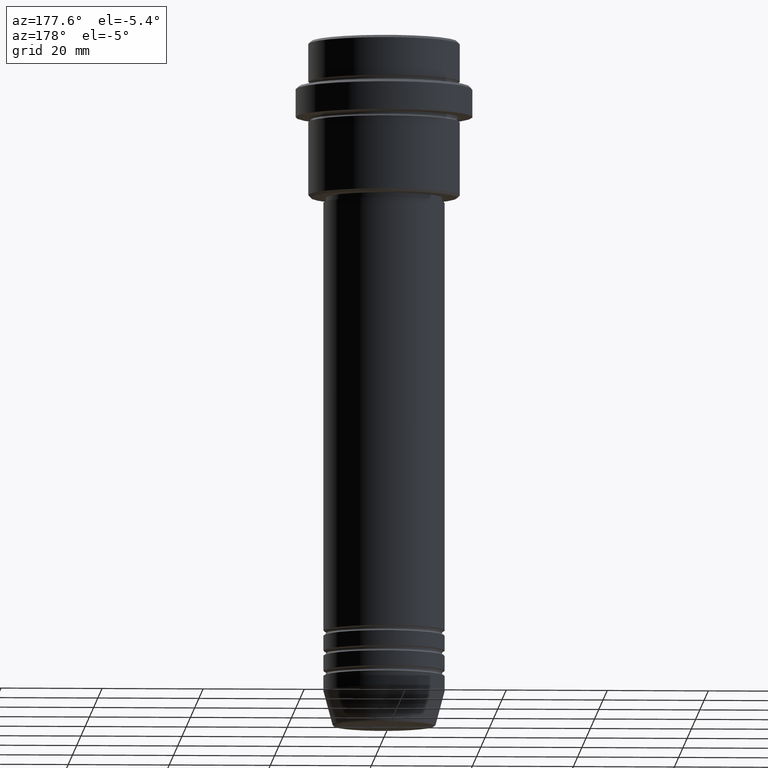
[diagram: clean part render]
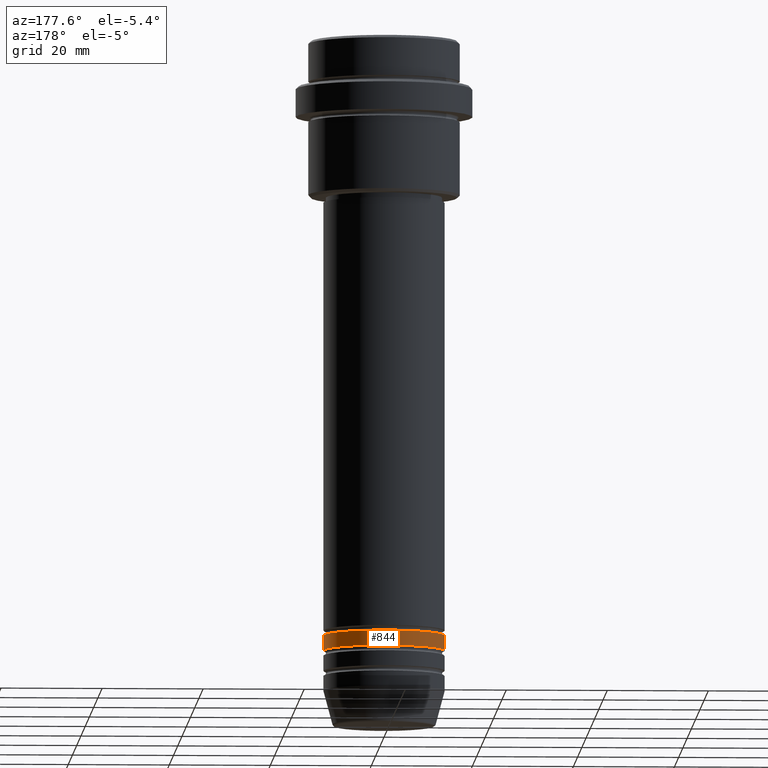
[diagram: same view with one face highlighted and labeled with its STEP entity id]
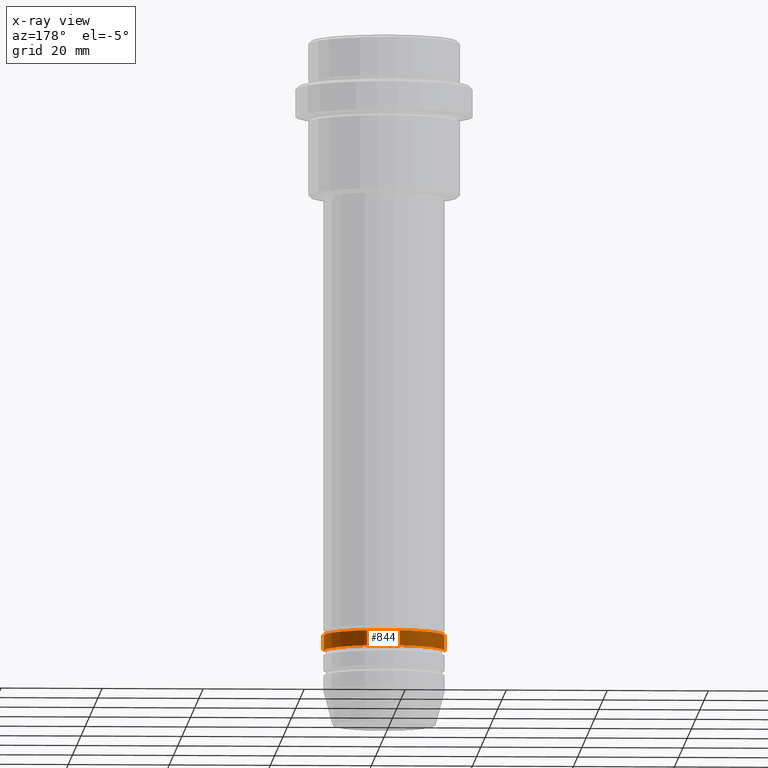
[diagram: x-ray of the same camera — body ghosted, the highlighted face saturated]
A machine part, auxiliary view. The second image highlights one B-rep face of the part: STEP entity #844.
The next image is the same camera in x-ray: the body ghosted, the highlighted face saturated — about 0% of this face is hidden behind the body in this view.
In plain terms, the highlighted cylindrical surface (partial cylindrical patch) has radius 12 mm, axis along (-0, -0, 1).
Its self-contained STEP definition (entity closure, byte-faithful):
#18 = EDGE_CURVE ( 'NONE', #1025, #468, #953, .T. ) ;
#68 = LINE ( 'NONE', #1129, #506 ) ;
#98 = VERTEX_POINT ( 'NONE', #547 ) ;
#118 = EDGE_CURVE ( 'NONE', #468, #1102, #699, .T. ) ;
#134 = CARTESIAN_POINT ( 'NONE',  ( -12.00000000000000000, 1.469576158976823947E-15, 0.000000000000000000 ) ) ;
#201 = AXIS2_PLACEMENT_3D ( 'NONE', #922, #607, #1026 ) ;
#254 = DIRECTION ( 'NONE',  ( -0.000000000000000000, -0.000000000000000000, 1.000000000000000000 ) ) ;
#301 = DIRECTION ( 'NONE',  ( 1.000000000000000000, 0.000000000000000000, 0.000000000000000000 ) ) ;
#310 = AXIS2_PLACEMENT_3D ( 'NONE', #1356, #440, #1116 ) ;
#402 = CARTESIAN_POINT ( 'NONE',  ( 12.00000000000000000, 0.000000000000000000, -120.9999999999999005 ) ) ;
#410 = CARTESIAN_POINT ( 'NONE',  ( 0.000000000000000000, 0.000000000000000000, -120.9999999999999005 ) ) ;
#440 = DIRECTION ( 'NONE',  ( -0.000000000000000000, -0.000000000000000000, 1.000000000000000000 ) ) ;
#468 = VERTEX_POINT ( 'NONE', #945 ) ;
#506 = VECTOR ( 'NONE', #721, 1000.000000000000000 ) ;
#542 = ORIENTED_EDGE ( 'NONE', *, *, #18, .T. ) ;
#547 = CARTESIAN_POINT ( 'NONE',  ( 12.00000000000000000, 0.000000000000000000, -117.9999999999999005 ) ) ;
#554 = EDGE_LOOP ( 'NONE', ( #542, #1273, #629, #664 ) ) ;
#607 = DIRECTION ( 'NONE',  ( -0.000000000000000000, -0.000000000000000000, 1.000000000000000000 ) ) ;
#629 = ORIENTED_EDGE ( 'NONE', *, *, #1352, .F. ) ;
#659 = CARTESIAN_POINT ( 'NONE',  ( -12.00000000000000000, 1.469576158976823947E-15, -117.9999999999999005 ) ) ;
#664 = ORIENTED_EDGE ( 'NONE', *, *, #1351, .F. ) ;
#694 = CYLINDRICAL_SURFACE ( 'NONE', #310, 12.00000000000000000 ) ;
#699 = LINE ( 'NONE', #134, #798 ) ;
#721 = DIRECTION ( 'NONE',  ( -0.000000000000000000, -0.000000000000000000, 1.000000000000000000 ) ) ;
#728 = DIRECTION ( 'NONE',  ( -0.000000000000000000, -0.000000000000000000, 1.000000000000000000 ) ) ;
#798 = VECTOR ( 'NONE', #254, 1000.000000000000000 ) ;
#844 = ADVANCED_FACE ( 'NONE', ( #1231 ), #694, .T. ) ;
#890 = CIRCLE ( 'NONE', #201, 12.00000000000000000 ) ;
#922 = CARTESIAN_POINT ( 'NONE',  ( 0.000000000000000000, 0.000000000000000000, -117.9999999999999005 ) ) ;
#945 = CARTESIAN_POINT ( 'NONE',  ( -12.00000000000000000, 1.469576158976823947E-15, -120.9999999999999005 ) ) ;
#953 = CIRCLE ( 'NONE', #1017, 12.00000000000000000 ) ;
#1017 = AXIS2_PLACEMENT_3D ( 'NONE', #410, #728, #301 ) ;
#1025 = VERTEX_POINT ( 'NONE', #402 ) ;
#1026 = DIRECTION ( 'NONE',  ( 1.000000000000000000, 0.000000000000000000, 0.000000000000000000 ) ) ;
#1102 = VERTEX_POINT ( 'NONE', #659 ) ;
#1116 = DIRECTION ( 'NONE',  ( 1.000000000000000000, 0.000000000000000000, 0.000000000000000000 ) ) ;
#1129 = CARTESIAN_POINT ( 'NONE',  ( 12.00000000000000000, 0.000000000000000000, 0.000000000000000000 ) ) ;
#1231 = FACE_OUTER_BOUND ( 'NONE', #554, .T. ) ;
#1273 = ORIENTED_EDGE ( 'NONE', *, *, #118, .T. ) ;
#1351 = EDGE_CURVE ( 'NONE', #1025, #98, #68, .T. ) ;
#1352 = EDGE_CURVE ( 'NONE', #98, #1102, #890, .T. ) ;
#1356 = CARTESIAN_POINT ( 'NONE',  ( 0.000000000000000000, 0.000000000000000000, 0.000000000000000000 ) ) ;